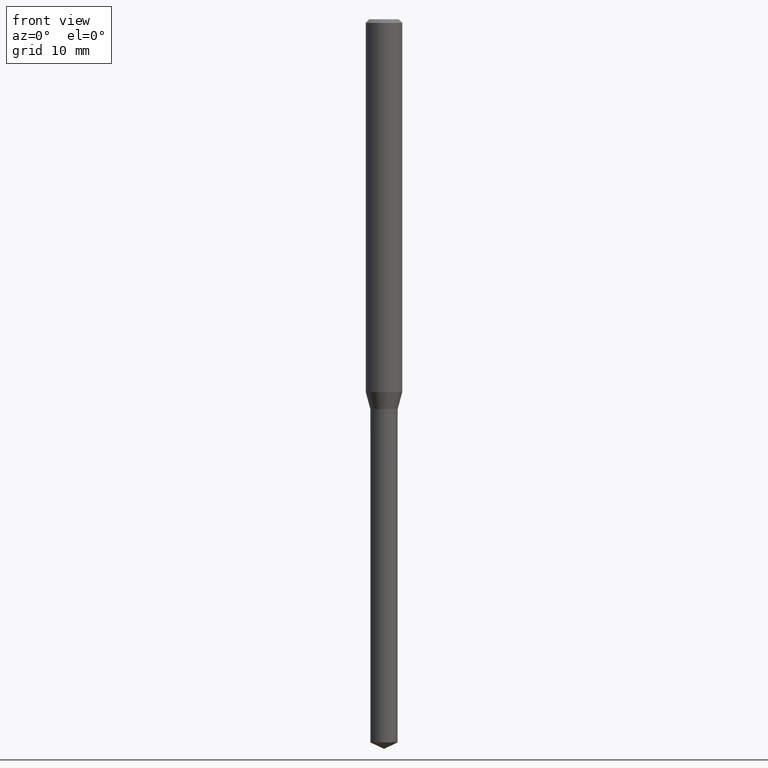
[diagram: clean part render]
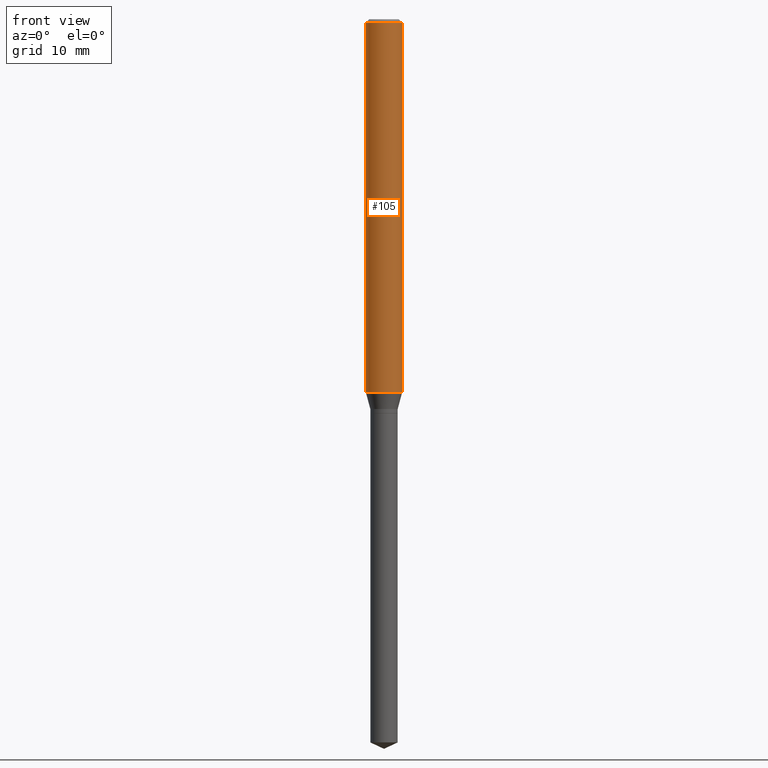
[diagram: same view with one face highlighted and labeled with its STEP entity id]
A machine part, front view. The second image highlights one B-rep face of the part: STEP entity #105.
In plain terms, the highlighted cylindrical surface (edge-blend (fillet) strip) has radius 1.4999 mm, axis along (-0, 0, 1).
Its self-contained STEP definition (entity closure, byte-faithful):
#7 = ORIENTED_EDGE ( 'NONE', *, *, #439, .T. ) ;
#38 = VECTOR ( 'NONE', #171, 39.37007874015748143 ) ;
#49 = DIRECTION ( 'NONE',  ( 1.000000000000000000, -6.982962677686271444E-15, 0.000000000000000000 ) ) ;
#57 = DIRECTION ( 'NONE',  ( -2.445468806185136597E-29, 3.491481338843145583E-15, 1.000000000000000000 ) ) ;
#69 = ORIENTED_EDGE ( 'NONE', *, *, #238, .T. ) ;
#70 = VERTEX_POINT ( 'NONE', #466 ) ;
#97 = AXIS2_PLACEMENT_3D ( 'NONE', #358, #57, #250 ) ;
#98 = CARTESIAN_POINT ( 'NONE',  ( 0.05904999999999999832, -4.535783407291118600E-16, -0.01181000000000007044 ) ) ;
#103 = VECTOR ( 'NONE', #333, 39.37007874015748143 ) ;
#105 = ADVANCED_FACE ( 'NONE', ( #198 ), #318, .T. ) ;
#115 = VERTEX_POINT ( 'NONE', #166 ) ;
#141 = EDGE_CURVE ( 'NONE', #331, #306, #400, .T. ) ;
#166 = CARTESIAN_POINT ( 'NONE',  ( 0.05905000000000015098, -4.626744354055249850E-15, -1.207052250588358744 ) ) ;
#171 = DIRECTION ( 'NONE',  ( -2.445468806185136877E-29, 3.491481338843145188E-15, 1.000000000000000000 ) ) ;
#198 = FACE_OUTER_BOUND ( 'NONE', #215, .T. ) ;
#207 = DIRECTION ( 'NONE',  ( -2.445468806185136597E-29, 3.491481338843145583E-15, 1.000000000000000000 ) ) ;
#214 = LINE ( 'NONE', #406, #103 ) ;
#215 = EDGE_LOOP ( 'NONE', ( #236, #7, #69, #344 ) ) ;
#236 = ORIENTED_EDGE ( 'NONE', *, *, #313, .F. ) ;
#238 = EDGE_CURVE ( 'NONE', #115, #306, #214, .T. ) ;
#239 = DIRECTION ( 'NONE',  ( -2.445468806185136597E-29, 3.491481338843145583E-15, 1.000000000000000000 ) ) ;
#248 = CARTESIAN_POINT ( 'NONE',  ( 0.000000000000000000, 0.000000000000000000, 0.000000000000000000 ) ) ;
#250 = DIRECTION ( 'NONE',  ( 1.000000000000000000, -6.982962677686266711E-15, 0.000000000000000000 ) ) ;
#252 = CARTESIAN_POINT ( 'NONE',  ( -0.05905000000000007465, 4.195754854663396902E-16, -2.904631170795525395E-30 ) ) ;
#279 = CARTESIAN_POINT ( 'NONE',  ( -0.05904999999999999832, -1.708241915808465850E-15, -0.01181000000000007044 ) ) ;
#306 = VERTEX_POINT ( 'NONE', #98 ) ;
#313 = EDGE_CURVE ( 'NONE', #70, #331, #434, .T. ) ;
#318 = CYLINDRICAL_SURFACE ( 'NONE', #338, 0.05905000000000007465 ) ;
#331 = VERTEX_POINT ( 'NONE', #279 ) ;
#333 = DIRECTION ( 'NONE',  ( -2.445468806185136877E-29, 3.491481338843145188E-15, 1.000000000000000000 ) ) ;
#338 = AXIS2_PLACEMENT_3D ( 'NONE', #248, #207, #360 ) ;
#344 = ORIENTED_EDGE ( 'NONE', *, *, #141, .F. ) ;
#358 = CARTESIAN_POINT ( 'NONE',  ( 2.888098660104663766E-31, -4.123439461173779647E-17, -0.01181000000000007044 ) ) ;
#360 = DIRECTION ( 'NONE',  ( 1.000000000000000000, -6.982962677686266711E-15, 4.876176775795936353E-29 ) ) ;
#386 = CARTESIAN_POINT ( 'NONE',  ( 2.951808626249396333E-29, -4.214400407937874930E-15, -1.207052250588358744 ) ) ;
#400 = CIRCLE ( 'NONE', #97, 0.05904999999999999832 ) ;
#406 = CARTESIAN_POINT ( 'NONE',  ( 0.05905000000000007465, -4.123439461173745750E-16, 2.879382386107504074E-30 ) ) ;
#430 = CIRCLE ( 'NONE', #445, 0.05905000000000015098 ) ;
#434 = LINE ( 'NONE', #252, #38 ) ;
#439 = EDGE_CURVE ( 'NONE', #70, #115, #430, .T. ) ;
#445 = AXIS2_PLACEMENT_3D ( 'NONE', #386, #239, #49 ) ;
#466 = CARTESIAN_POINT ( 'NONE',  ( -0.05905000000000015098, -3.794824922471535437E-15, -1.207052250588358744 ) ) ;